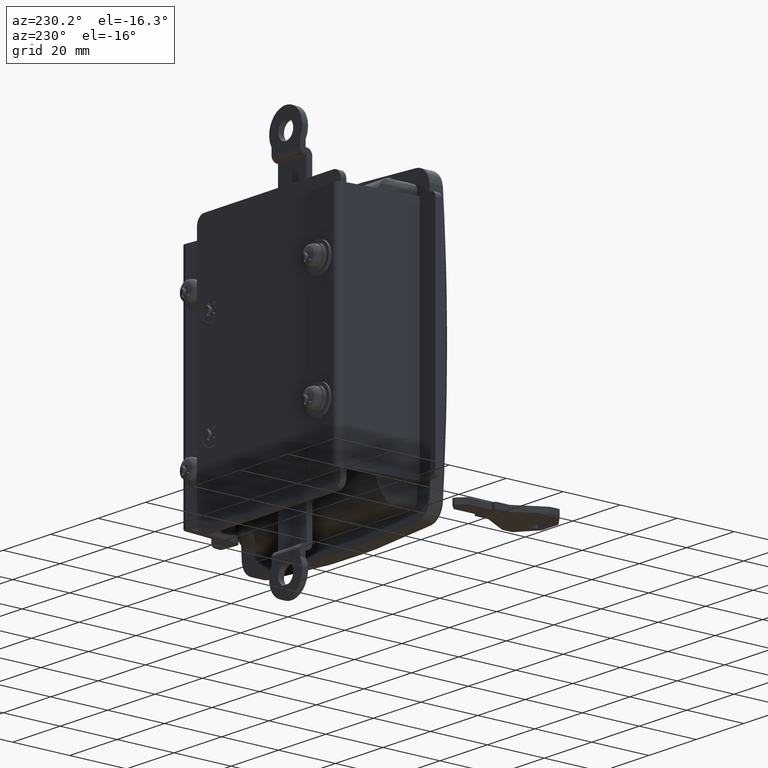
[diagram: clean part render]
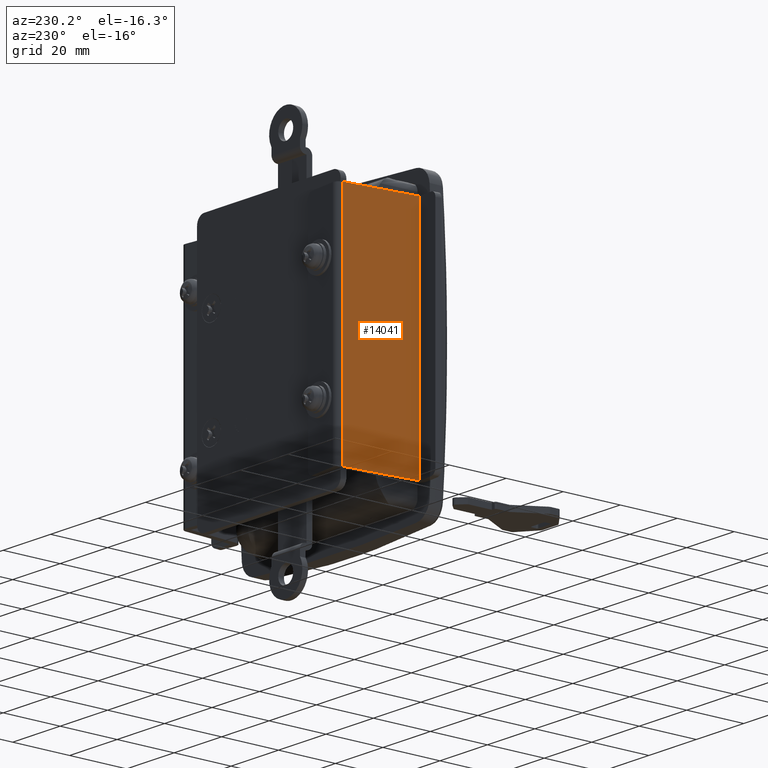
[diagram: same view with one face highlighted and labeled with its STEP entity id]
A machine part, auxiliary view. The second image highlights one B-rep face of the part: STEP entity #14041.
In plain terms, the highlighted face is a freeform B-spline surface patch.
Its self-contained STEP definition (entity closure, byte-faithful):
#13709=CARTESIAN_POINT('',(4.313177999999850,30.378511999999951,40.0));
#13710=VERTEX_POINT('',#13709);
#13726=CARTESIAN_POINT('',(1.851548999999665,5.499999999999940,40.0));
#13727=VERTEX_POINT('',#13726);
#13728=CARTESIAN_POINT('',(4.313177999999850,30.378511999999951,40.0));
#13729=CARTESIAN_POINT('',(1.851548999999665,5.499999999999940,40.0));
#13730=QUASI_UNIFORM_CURVE('',1,(#13728,#13729),.UNSPECIFIED.,.F.,.U.);
#13731=EDGE_CURVE('',#13710,#13727,#13730,.T.);
#13784=CARTESIAN_POINT('',(1.851548999999665,5.499999999999940,-40.0));
#13785=VERTEX_POINT('',#13784);
#13791=CARTESIAN_POINT('',(4.313177999999850,30.378511999999951,-40.0));
#13792=VERTEX_POINT('',#13791);
#13793=CARTESIAN_POINT('',(4.313177999999850,30.378511999999951,-40.0));
#13794=CARTESIAN_POINT('',(1.851548999999665,5.499999999999940,-40.0));
#13795=QUASI_UNIFORM_CURVE('',1,(#13793,#13794),.UNSPECIFIED.,.F.,.U.);
#13796=EDGE_CURVE('',#13792,#13785,#13795,.T.);
#14018=CARTESIAN_POINT('',(1.851548999999665,5.499999999999940,-40.0));
#14019=CARTESIAN_POINT('',(1.851548999999665,5.499999999999940,40.0));
#14020=QUASI_UNIFORM_CURVE('',1,(#14018,#14019),.UNSPECIFIED.,.F.,.U.);
#14021=EDGE_CURVE('',#13785,#13727,#14020,.T.);
#14026=CARTESIAN_POINT('',(4.436136317562721,31.621193159097231,-43.995999844944478));
#14027=CARTESIAN_POINT('',(1.728590572393401,4.257317728746513,-43.995999844944478));
#14028=CARTESIAN_POINT('',(4.436136317562721,31.621193159097231,43.996001990711690));
#14029=CARTESIAN_POINT('',(1.728590572393401,4.257317728746513,43.996001990711690));
#14030=B_SPLINE_SURFACE_WITH_KNOTS('',1,1,((#14026,#14028),(#14027,#14029)),.UNSPECIFIED.,.F.,.F.,.U.,(2,2),(2,2),(0.0,27.497499568686901),(0.0,87.992001835656168),.UNSPECIFIED.);
#14031=ORIENTED_EDGE('',*,*,#13731,.F.);
#14032=CARTESIAN_POINT('',(4.313177999999850,30.378511999999951,-40.0));
#14033=CARTESIAN_POINT('',(4.313177999999850,30.378511999999951,40.0));
#14034=QUASI_UNIFORM_CURVE('',1,(#14032,#14033),.UNSPECIFIED.,.F.,.U.);
#14035=EDGE_CURVE('',#13792,#13710,#14034,.T.);
#14036=ORIENTED_EDGE('',*,*,#14035,.F.);
#14037=ORIENTED_EDGE('',*,*,#13796,.T.);
#14038=ORIENTED_EDGE('',*,*,#14021,.T.);
#14039=EDGE_LOOP('',(#14031,#14036,#14037,#14038));
#14040=FACE_OUTER_BOUND('',#14039,.T.);
#14041=ADVANCED_FACE('',(#14040),#14030,.T.);